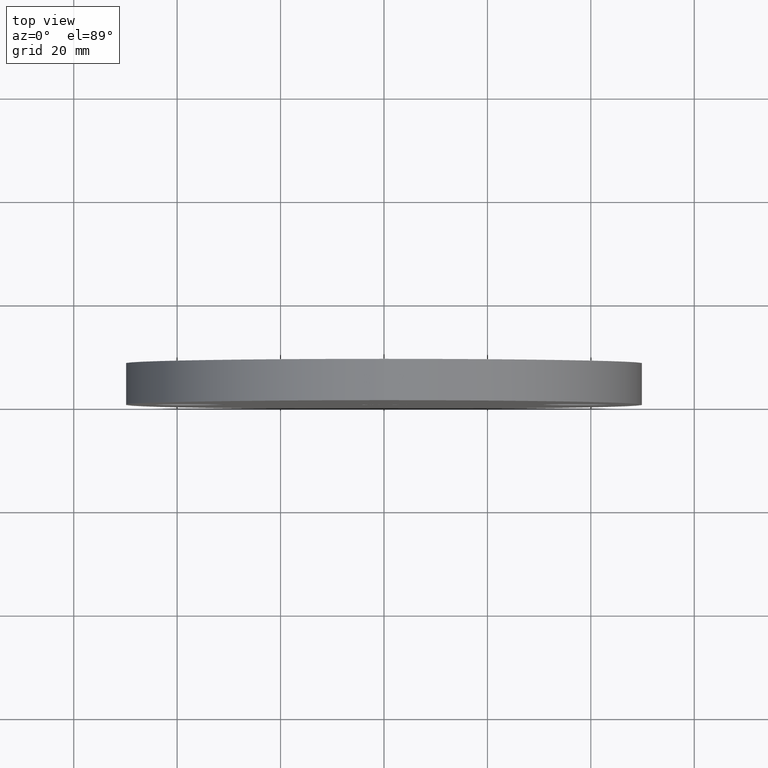
[diagram: clean part render]
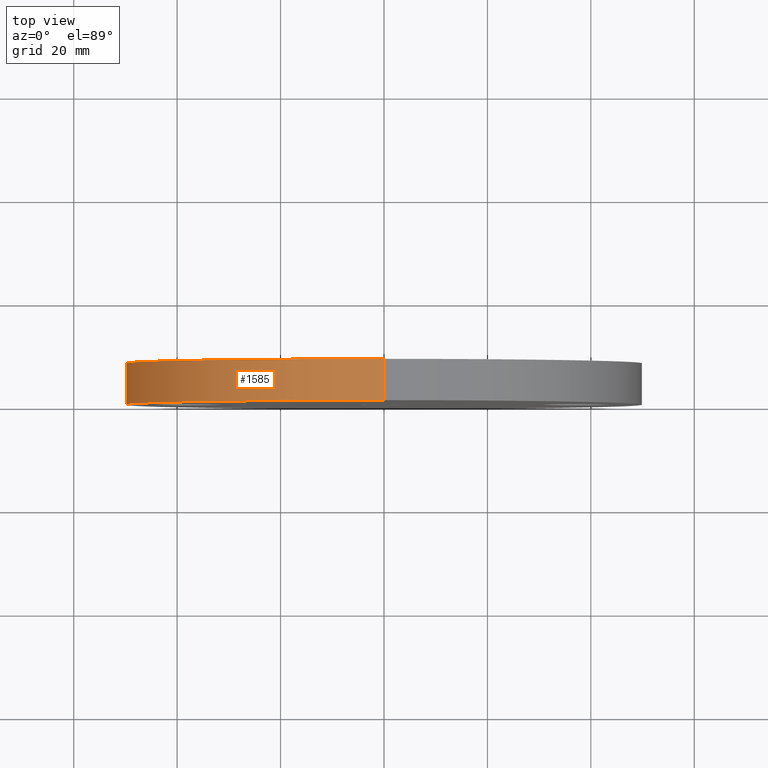
[diagram: same view with one face highlighted and labeled with its STEP entity id]
A machine part, top view. The second image highlights one B-rep face of the part: STEP entity #1585.
In plain terms, the highlighted cylindrical surface (partial cylindrical patch) has radius 50 mm, axis along (-0, -1, -0).
Its self-contained STEP definition (entity closure, byte-faithful):
#848 = VERTEX_POINT ( 'NONE', #5496 ) ;
#1118 = DIRECTION ( 'NONE',  ( 0.000000000000000000, 0.000000000000000000, -1.000000000000000000 ) ) ;
#1522 = EDGE_CURVE ( 'NONE', #848, #12424, #6947, .T. ) ;
#1585 = ADVANCED_FACE ( 'NONE', ( #7971 ), #4042, .T. ) ;
#1990 = LINE ( 'NONE', #13539, #13159 ) ;
#2136 = CARTESIAN_POINT ( 'NONE',  ( 0.000000000000000000, 0.000000000000000000, 0.000000000000000000 ) ) ;
#2367 = AXIS2_PLACEMENT_3D ( 'NONE', #4368, #8694, #1118 ) ;
#3236 = DIRECTION ( 'NONE',  ( 0.000000000000000000, 1.000000000000000000, 0.000000000000000000 ) ) ;
#3750 = ORIENTED_EDGE ( 'NONE', *, *, #11502, .F. ) ;
#4042 = CYLINDRICAL_SURFACE ( 'NONE', #2367, 50.00000000000000000 ) ;
#4368 = CARTESIAN_POINT ( 'NONE',  ( 0.000000000000000000, 8.000000000000000000, 0.000000000000000000 ) ) ;
#4518 = CARTESIAN_POINT ( 'NONE',  ( 0.000000000000000000, 8.000000000000000000, -50.00000000000000000 ) ) ;
#4786 = CIRCLE ( 'NONE', #10844, 50.00000000000000000 ) ;
#4839 = ORIENTED_EDGE ( 'NONE', *, *, #7453, .F. ) ;
#5496 = CARTESIAN_POINT ( 'NONE',  ( 0.000000000000000000, 0.000000000000000000, -50.00000000000000000 ) ) ;
#5843 = DIRECTION ( 'NONE',  ( 0.000000000000000000, 1.000000000000000000, 0.000000000000000000 ) ) ;
#6004 = CARTESIAN_POINT ( 'NONE',  ( 6.123233995736766085E-15, 8.000000000000000000, 50.00000000000000000 ) ) ;
#6018 = VECTOR ( 'NONE', #10389, 1000.000000000000000 ) ;
#6761 = CARTESIAN_POINT ( 'NONE',  ( 0.000000000000000000, 8.000000000000000000, 0.000000000000000000 ) ) ;
#6947 = CIRCLE ( 'NONE', #10613, 50.00000000000000000 ) ;
#7453 = EDGE_CURVE ( 'NONE', #8075, #12424, #9235, .T. ) ;
#7971 = FACE_OUTER_BOUND ( 'NONE', #13256, .T. ) ;
#8075 = VERTEX_POINT ( 'NONE', #12149 ) ;
#8190 = ORIENTED_EDGE ( 'NONE', *, *, #10344, .T. ) ;
#8513 = DIRECTION ( 'NONE',  ( -0.000000000000000000, -1.000000000000000000, -0.000000000000000000 ) ) ;
#8694 = DIRECTION ( 'NONE',  ( -0.000000000000000000, -1.000000000000000000, -0.000000000000000000 ) ) ;
#9235 = LINE ( 'NONE', #6004, #6018 ) ;
#9859 = DIRECTION ( 'NONE',  ( 0.000000000000000000, 0.000000000000000000, 1.000000000000000000 ) ) ;
#10344 = EDGE_CURVE ( 'NONE', #12234, #848, #1990, .T. ) ;
#10389 = DIRECTION ( 'NONE',  ( -0.000000000000000000, -1.000000000000000000, -0.000000000000000000 ) ) ;
#10613 = AXIS2_PLACEMENT_3D ( 'NONE', #2136, #3236, #11938 ) ;
#10777 = ORIENTED_EDGE ( 'NONE', *, *, #1522, .T. ) ;
#10844 = AXIS2_PLACEMENT_3D ( 'NONE', #6761, #5843, #9859 ) ;
#11502 = EDGE_CURVE ( 'NONE', #12234, #8075, #4786, .T. ) ;
#11938 = DIRECTION ( 'NONE',  ( 0.000000000000000000, 0.000000000000000000, 1.000000000000000000 ) ) ;
#12149 = CARTESIAN_POINT ( 'NONE',  ( 6.123233995736766085E-15, 8.000000000000000000, 50.00000000000000000 ) ) ;
#12234 = VERTEX_POINT ( 'NONE', #4518 ) ;
#12424 = VERTEX_POINT ( 'NONE', #12523 ) ;
#12523 = CARTESIAN_POINT ( 'NONE',  ( 6.123233995736766085E-15, 0.000000000000000000, 50.00000000000000000 ) ) ;
#13159 = VECTOR ( 'NONE', #8513, 1000.000000000000000 ) ;
#13256 = EDGE_LOOP ( 'NONE', ( #4839, #3750, #8190, #10777 ) ) ;
#13539 = CARTESIAN_POINT ( 'NONE',  ( 0.000000000000000000, 8.000000000000000000, -50.00000000000000000 ) ) ;